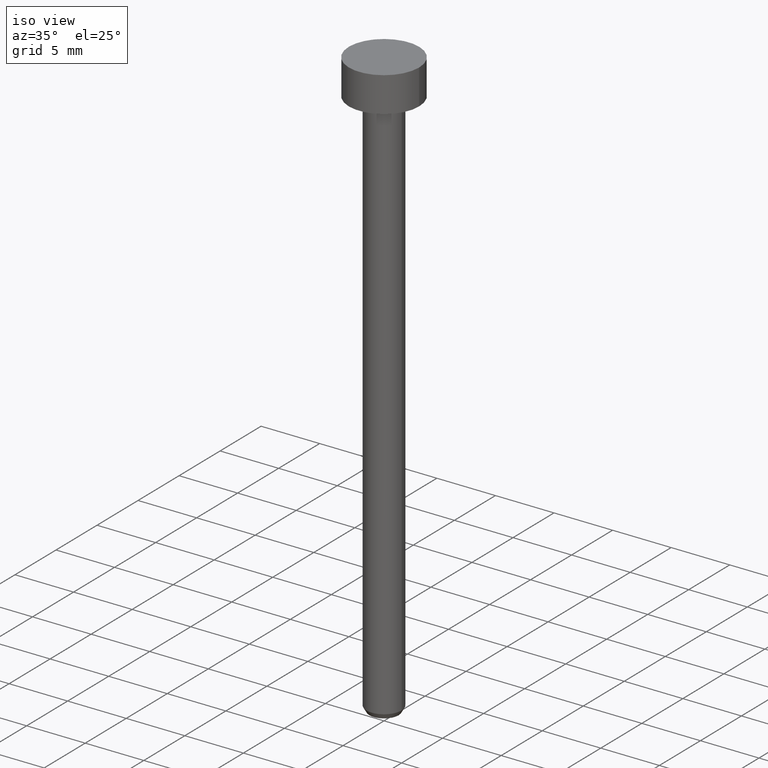
[diagram: clean part render]
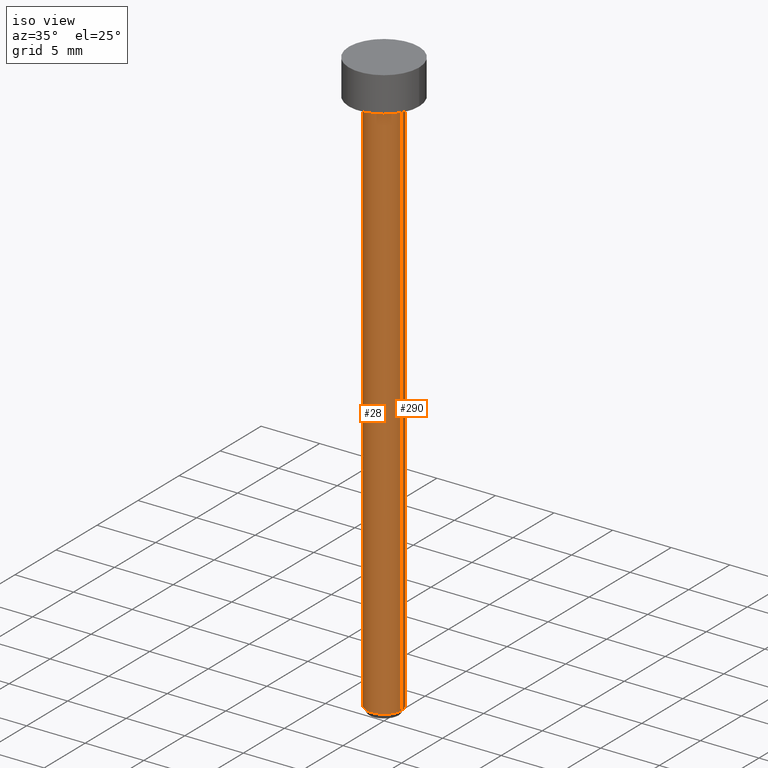
[diagram: same view with one multi-face feature highlighted, each face labeled with its STEP entity id]
A machine part, iso view. The highlighted faces form ONE feature: a constant-radius fillet chain: 2 tangent blend faces with common blend radius 1.5 mm. The faces share edges in the B-rep.
Their STEP definitions:
[1] entity #290 (Cylinder):
#5 = DIRECTION ( 'NONE',  ( 1.000000000000000000, 0.000000000000000000, 0.000000000000000000 ) ) ;
#7 = CARTESIAN_POINT ( 'NONE',  ( -1.500000000000000000, 1.836970198721029934E-16, -3.000000000000000444 ) ) ;
#12 = ORIENTED_EDGE ( 'NONE', *, *, #352, .F. ) ;
#38 = VECTOR ( 'NONE', #207, 1000.000000000000000 ) ;
#39 = FACE_OUTER_BOUND ( 'NONE', #91, .T. ) ;
#64 = CARTESIAN_POINT ( 'NONE',  ( -1.500000000000000000, 1.836970198721029934E-16, -50.00000000000000000 ) ) ;
#73 = ORIENTED_EDGE ( 'NONE', *, *, #96, .T. ) ;
#91 = EDGE_LOOP ( 'NONE', ( #73, #200, #188, #12 ) ) ;
#93 = CARTESIAN_POINT ( 'NONE',  ( 1.500000000000000000, 0.000000000000000000, 0.000000000000000000 ) ) ;
#96 = EDGE_CURVE ( 'NONE', #132, #292, #219, .T. ) ;
#101 = AXIS2_PLACEMENT_3D ( 'NONE', #171, #255, #5 ) ;
#113 = AXIS2_PLACEMENT_3D ( 'NONE', #149, #203, #230 ) ;
#122 = CARTESIAN_POINT ( 'NONE',  ( 1.500000000000000000, 0.000000000000000000, -3.000000000000000444 ) ) ;
#132 = VERTEX_POINT ( 'NONE', #159 ) ;
#140 = VECTOR ( 'NONE', #144, 1000.000000000000000 ) ;
#144 = DIRECTION ( 'NONE',  ( -0.000000000000000000, -0.000000000000000000, 1.000000000000000000 ) ) ;
#149 = CARTESIAN_POINT ( 'NONE',  ( 0.000000000000000000, 0.000000000000000000, -3.000000000000000444 ) ) ;
#159 = CARTESIAN_POINT ( 'NONE',  ( 1.500000000000000000, 0.000000000000000000, -50.00000000000000000 ) ) ;
#164 = AXIS2_PLACEMENT_3D ( 'NONE', #308, #314, #334 ) ;
#171 = CARTESIAN_POINT ( 'NONE',  ( 0.000000000000000000, 0.000000000000000000, -50.00000000000000000 ) ) ;
#188 = ORIENTED_EDGE ( 'NONE', *, *, #301, .F. ) ;
#200 = ORIENTED_EDGE ( 'NONE', *, *, #244, .T. ) ;
#201 = CYLINDRICAL_SURFACE ( 'NONE', #164, 1.500000000000000000 ) ;
#203 = DIRECTION ( 'NONE',  ( -0.000000000000000000, -0.000000000000000000, 1.000000000000000000 ) ) ;
#207 = DIRECTION ( 'NONE',  ( -0.000000000000000000, -0.000000000000000000, 1.000000000000000000 ) ) ;
#219 = CIRCLE ( 'NONE', #101, 1.500000000000000000 ) ;
#230 = DIRECTION ( 'NONE',  ( 1.000000000000000000, 0.000000000000000000, 0.000000000000000000 ) ) ;
#244 = EDGE_CURVE ( 'NONE', #292, #322, #305, .T. ) ;
#254 = CARTESIAN_POINT ( 'NONE',  ( -1.500000000000000000, 1.836970198721029934E-16, 0.000000000000000000 ) ) ;
#255 = DIRECTION ( 'NONE',  ( -0.000000000000000000, -0.000000000000000000, 1.000000000000000000 ) ) ;
#266 = CIRCLE ( 'NONE', #113, 1.500000000000000000 ) ;
#290 = ADVANCED_FACE ( 'NONE', ( #39 ), #201, .T. ) ;
#292 = VERTEX_POINT ( 'NONE', #64 ) ;
#298 = VERTEX_POINT ( 'NONE', #122 ) ;
#301 = EDGE_CURVE ( 'NONE', #298, #322, #266, .T. ) ;
#305 = LINE ( 'NONE', #254, #140 ) ;
#308 = CARTESIAN_POINT ( 'NONE',  ( 0.000000000000000000, 0.000000000000000000, 0.000000000000000000 ) ) ;
#314 = DIRECTION ( 'NONE',  ( -0.000000000000000000, -0.000000000000000000, 1.000000000000000000 ) ) ;
#322 = VERTEX_POINT ( 'NONE', #7 ) ;
#334 = DIRECTION ( 'NONE',  ( 1.000000000000000000, 0.000000000000000000, 0.000000000000000000 ) ) ;
#338 = LINE ( 'NONE', #93, #38 ) ;
#352 = EDGE_CURVE ( 'NONE', #132, #298, #338, .T. ) ;
[2] entity #28 (Cylinder):
#1 = AXIS2_PLACEMENT_3D ( 'NONE', #58, #351, #116 ) ;
#7 = CARTESIAN_POINT ( 'NONE',  ( -1.500000000000000000, 1.836970198721029934E-16, -3.000000000000000444 ) ) ;
#9 = CIRCLE ( 'NONE', #318, 1.500000000000000000 ) ;
#28 = ADVANCED_FACE ( 'NONE', ( #243 ), #300, .T. ) ;
#32 = AXIS2_PLACEMENT_3D ( 'NONE', #191, #46, #295 ) ;
#38 = VECTOR ( 'NONE', #207, 1000.000000000000000 ) ;
#46 = DIRECTION ( 'NONE',  ( -0.000000000000000000, -0.000000000000000000, 1.000000000000000000 ) ) ;
#55 = CARTESIAN_POINT ( 'NONE',  ( 0.000000000000000000, 0.000000000000000000, -3.000000000000000444 ) ) ;
#56 = EDGE_CURVE ( 'NONE', #292, #132, #187, .T. ) ;
#58 = CARTESIAN_POINT ( 'NONE',  ( 0.000000000000000000, 0.000000000000000000, 0.000000000000000000 ) ) ;
#63 = EDGE_CURVE ( 'NONE', #322, #298, #9, .T. ) ;
#64 = CARTESIAN_POINT ( 'NONE',  ( -1.500000000000000000, 1.836970198721029934E-16, -50.00000000000000000 ) ) ;
#93 = CARTESIAN_POINT ( 'NONE',  ( 1.500000000000000000, 0.000000000000000000, 0.000000000000000000 ) ) ;
#116 = DIRECTION ( 'NONE',  ( 1.000000000000000000, 0.000000000000000000, 0.000000000000000000 ) ) ;
#122 = CARTESIAN_POINT ( 'NONE',  ( 1.500000000000000000, 0.000000000000000000, -3.000000000000000444 ) ) ;
#132 = VERTEX_POINT ( 'NONE', #159 ) ;
#140 = VECTOR ( 'NONE', #144, 1000.000000000000000 ) ;
#144 = DIRECTION ( 'NONE',  ( -0.000000000000000000, -0.000000000000000000, 1.000000000000000000 ) ) ;
#145 = EDGE_LOOP ( 'NONE', ( #293, #313, #220, #285 ) ) ;
#159 = CARTESIAN_POINT ( 'NONE',  ( 1.500000000000000000, 0.000000000000000000, -50.00000000000000000 ) ) ;
#187 = CIRCLE ( 'NONE', #32, 1.500000000000000000 ) ;
#191 = CARTESIAN_POINT ( 'NONE',  ( 0.000000000000000000, 0.000000000000000000, -50.00000000000000000 ) ) ;
#207 = DIRECTION ( 'NONE',  ( -0.000000000000000000, -0.000000000000000000, 1.000000000000000000 ) ) ;
#220 = ORIENTED_EDGE ( 'NONE', *, *, #352, .T. ) ;
#221 = DIRECTION ( 'NONE',  ( 1.000000000000000000, 0.000000000000000000, 0.000000000000000000 ) ) ;
#243 = FACE_OUTER_BOUND ( 'NONE', #145, .T. ) ;
#244 = EDGE_CURVE ( 'NONE', #292, #322, #305, .T. ) ;
#254 = CARTESIAN_POINT ( 'NONE',  ( -1.500000000000000000, 1.836970198721029934E-16, 0.000000000000000000 ) ) ;
#269 = DIRECTION ( 'NONE',  ( -0.000000000000000000, -0.000000000000000000, 1.000000000000000000 ) ) ;
#285 = ORIENTED_EDGE ( 'NONE', *, *, #63, .F. ) ;
#292 = VERTEX_POINT ( 'NONE', #64 ) ;
#293 = ORIENTED_EDGE ( 'NONE', *, *, #244, .F. ) ;
#295 = DIRECTION ( 'NONE',  ( 1.000000000000000000, 0.000000000000000000, 0.000000000000000000 ) ) ;
#298 = VERTEX_POINT ( 'NONE', #122 ) ;
#300 = CYLINDRICAL_SURFACE ( 'NONE', #1, 1.500000000000000000 ) ;
#305 = LINE ( 'NONE', #254, #140 ) ;
#313 = ORIENTED_EDGE ( 'NONE', *, *, #56, .T. ) ;
#318 = AXIS2_PLACEMENT_3D ( 'NONE', #55, #269, #221 ) ;
#322 = VERTEX_POINT ( 'NONE', #7 ) ;
#338 = LINE ( 'NONE', #93, #38 ) ;
#351 = DIRECTION ( 'NONE',  ( -0.000000000000000000, -0.000000000000000000, 1.000000000000000000 ) ) ;
#352 = EDGE_CURVE ( 'NONE', #132, #298, #338, .T. ) ;